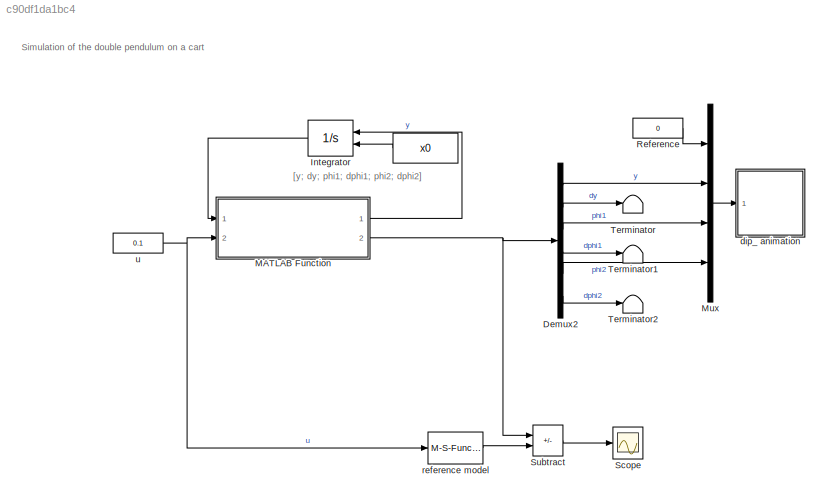
MODEL slx_c90df1da1bc4
KIND model
CONFIG AbsTol = auto
CONFIG EnableMultiTasking = on
CONFIG FixedStep = 0.01
CONFIG MaxStep = 0.05
CONFIG MinStep = auto
CONFIG RelTol = 1e-3
CONFIG SampleTimeConstraint = Unconstrained
CONFIG Solver = ode45
CONFIG SolverName = ode45
CONFIG StartTime = 0.0
CONFIG StopTime = 10
BLOCK [Constant]  
  Value = x0
BLOCK [Demux] Demux2
  Outputs = 6
  Ports = [1, 6]
BLOCK [Integrator] Integrator
  InitialCondition = [0;0;0;0;0;0]
  InitialConditionSource = external
  Ports = [2, 1]
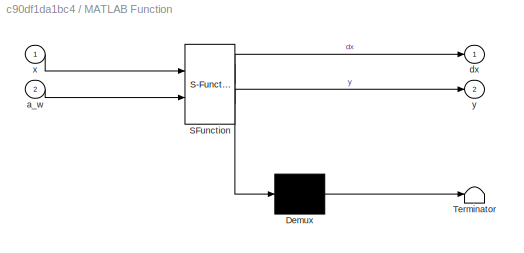
BLOCK [SubSystem] MATLAB Function
  ErrorFcn = Stateflow.Translate.translate
  PermitHierarchicalResolution = ExplicitOnly
  Ports = [2, 2]
  SFBlockType = MATLAB Function
  TreatAsAtomicUnit = on
BLOCK [Demux] MATLAB Function/ Demux 
  Outputs = 1
  Ports = [1, 1]
BLOCK [S-Function] MATLAB Function/ SFunction 
  EnableBusSupport = on
  FunctionName = sf_sfun
  Parameters = par
  PortCounts = [2 3]
  Ports = [2, 3]
  SFcnIsStateOwnerBlock = off
  SFunctionDeploymentMode = off
  Tag = Stateflow S-Function dip_student_sim_simulink_r2017b 2
BLOCK [Terminator] MATLAB Function/ Terminator 
BLOCK [Inport] MATLAB Function/a_w
  Port = 2
BLOCK [Outport] MATLAB Function/dx
  VectorParamsAs1DForOutWhenUnconnected = off
BLOCK [Inport] MATLAB Function/x
BLOCK [Outport] MATLAB Function/y
  Port = 2
  VectorParamsAs1DForOutWhenUnconnected = off
BLOCK [Mux] Mux
  DisplayOption = bar
  Ports = [4, 1]
BLOCK [Constant] Reference
  Value = 0
BLOCK [Scope] Scope
  Floating = off
  NumInputPorts = 1
  Ports = [1]
  ScopeSpecificationString = Simulink.scopes.TimeScopeBlockCfg('CurrentConfiguration', extmgr.ConfigurationSet(extmgr.Configuration('Core','General UI',true),extmgr.Configuration('Core','Source UI',true),extmgr.Configuration('Sources','WiredSimulink',true),extmgr.Configuration('Visuals','Time Domain',true,'SerializedDisplays',{struct('MinYLimReal','-0.0000000008','MaxYLimReal','0.0000000007','YLabelReal','','MinYLimMag','0.00...<+1546ch>
BLOCK [Sum] Subtract
  IconShape = rectangular
  Inputs = +-
  Ports = [2, 1]
BLOCK [Terminator] Terminator
BLOCK [Terminator] Terminator1
BLOCK [Terminator] Terminator2
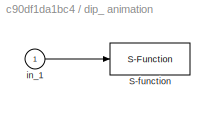
BLOCK [SubSystem] dip_ animation
  Ports = [1]
BLOCK [S-Function] dip_ animation/S-function
  DeleteFcn = pendan([],[],[],'DeleteBlock');
  EnableBusSupport = off
  FunctionName = dip_animation
  Parameters = RefBlock
  Ports = [1]
  SFcnIsStateOwnerBlock = off
  SFunctionDeploymentMode = off
BLOCK [Inport] dip_ animation/in_1
BLOCK [M-S-Function] reference model
  FunctionName = dip_sim_ref
  Parameters = x0
  Ports = [1, 1]
BLOCK [Constant] u
  Value = 0.1
ANNOTATION (root): [y; dy; phi1; dphi1; phi2; dphi2]
ANNOTATION (root): Simulation of the double pendulum on a cart
LINE  :1 -> Integrator:2
LINE Demux2:1 -> Mux:2
LINE Demux2:2 -> Terminator:1
LINE Demux2:3 -> Mux:3
LINE Demux2:4 -> Terminator1:1
LINE Demux2:5 -> Mux:4
LINE Demux2:6 -> Terminator2:1
LINE Integrator:1 -> MATLAB Function:1
LINE MATLAB Function:1 -> Integrator:1
NET MATLAB Function:2 -> Demux2:1, Subtract:1
LINE Mux:1 -> dip_ animation:1
LINE Reference:1 -> Mux:1
LINE Subtract:1 -> Scope:1
LINE dip_ animation/in_1:1 -> dip_ animation/S-function:1
LINE reference model:1 -> Subtract:2
NET u:1 -> MATLAB Function:2, reference model:1
note: NET lines group one-source signal fan-out (src -> all destinations, sorted); 1:1 wires keep LINE
CHART MATLAB Function states=1 transitions=1
  STATE_LABEL 'eML_blk_kernel()'
  STATE_LABEL 'SCRIPT:\nfunction [dx, y] = f(x,a_w,par)\n%YEVY\n%    EXPR = YEVY(T,IN2,PARAM76,PARAM77,PARAM78,PARAM79,PARAM80,PARAM81,PARAM82,PARAM83,PARAM84,PARAM85,PARAM86,PARAM87)\n\n%    This function was generated by the Symbolic Math Toolbox version 9.2.\n%    21-Nov-2022 21:11:29\n\nl1 = par(1);\nl2 = par(2);\nl_S1 = par(3);\nl_S2 = par(4);\nm_G1 = par(5);\nm_G2 = par(6);\nJ_G1xx = par(7);\nJ_G2xx = par(8);\nk_G1 = par(...<+1805ch>'
